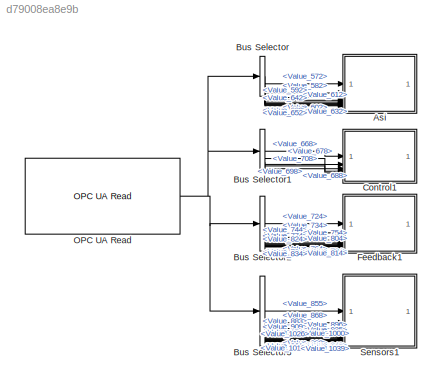
MODEL slx_d79008ea8e9b
KIND model
CONFIG AbsTol = auto
CONFIG EnableMultiTasking = off
CONFIG FixedStep = auto
CONFIG MaxStep = auto
CONFIG MinStep = auto
CONFIG RelTol = 1e-3
CONFIG SampleTimeConstraint = Unconstrained
CONFIG SolverName = VariableStepAuto
CONFIG StartTime = 0.0
CONFIG StopTime = 10.0
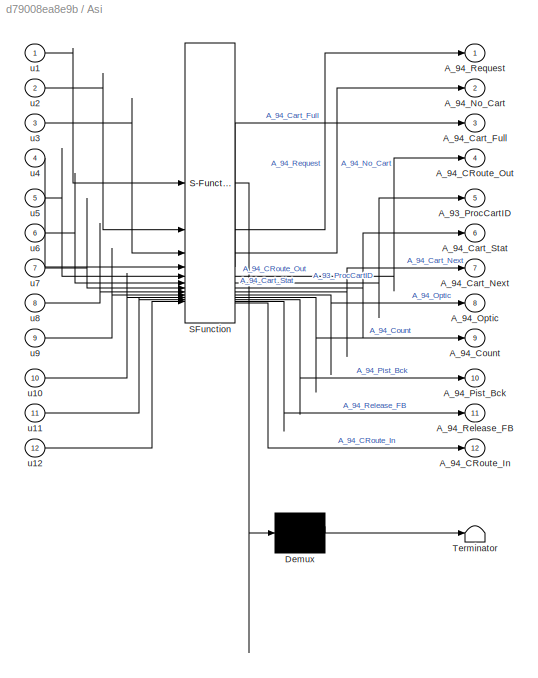
BLOCK [SubSystem] Asi
  ErrorFcn = Stateflow.Translate.translate
  PermitHierarchicalResolution = ExplicitOnly
  SFBlockType = MATLAB Function
  TreatAsAtomicUnit = on
BLOCK [Demux] Asi/ Demux 
  Outputs = 1
BLOCK [S-Function] Asi/ SFunction 
  EnableBusSupport = off
  FunctionName = sf_sfun
  PortCounts = [12 13]
  SFcnIsStateOwnerBlock = off
  SFunctionDeploymentMode = off
  Tag = Stateflow S-Function 5
BLOCK [Terminator] Asi/ Terminator 
BLOCK [Outport] Asi/A_93_ProcCartID
  Port = 5
BLOCK [Outport] Asi/A_94_CRoute_In
  Port = 12
BLOCK [Outport] Asi/A_94_CRoute_Out
  Port = 4
BLOCK [Outport] Asi/A_94_Cart_Full
  Port = 3
BLOCK [Outport] Asi/A_94_Cart_Next
  Port = 7
BLOCK [Outport] Asi/A_94_Cart_Stat
  Port = 6
BLOCK [Outport] Asi/A_94_Count
  Port = 9
BLOCK [Outport] Asi/A_94_No_Cart
  Port = 2
BLOCK [Outport] Asi/A_94_Optic
  Port = 8
BLOCK [Outport] Asi/A_94_Pist_Bck
  Port = 10
BLOCK [Outport] Asi/A_94_Release_FB
  Port = 11
BLOCK [Outport] Asi/A_94_Request
BLOCK [Inport] Asi/u1
BLOCK [Inport] Asi/u10
  Port = 10
BLOCK [Inport] Asi/u11
  Port = 11
BLOCK [Inport] Asi/u12
  Port = 12
BLOCK [Inport] Asi/u2
  Port = 2
BLOCK [Inport] Asi/u3
  Port = 3
BLOCK [Inport] Asi/u4
  Port = 4
BLOCK [Inport] Asi/u5
  Port = 5
BLOCK [Inport] Asi/u6
  Port = 6
BLOCK [Inport] Asi/u7
  Port = 7
BLOCK [Inport] Asi/u8
  Port = 8
BLOCK [Inport] Asi/u9
  Port = 9
BLOCK [BusSelector] Bus Selector
  OutputSignals = Value_572,Value_582,Value_592,Value_602,Value_612,Value_622,Value_632,Value_642,Value_652
BLOCK [BusSelector] Bus Selector1
  OutputSignals = Value_668,Value_678,Value_688,Value_698,Value_708
BLOCK [BusSelector] Bus Selector2
  OutputSignals = Value_724,Value_734,Value_744,Value_754,Value_764,Value_774,Value_784,Value_794,Value_804,Value_814,Value_824,Value_834
BLOCK [BusSelector] Bus Selector3
  OutputSignals = Value_855,Value_868,Value_883,Value_896,Value_909,Value_922,Value_935,Value_948,Value_961,Value_974,Value_987,Value_1000,Value_1013,Value_1026,Value_1039
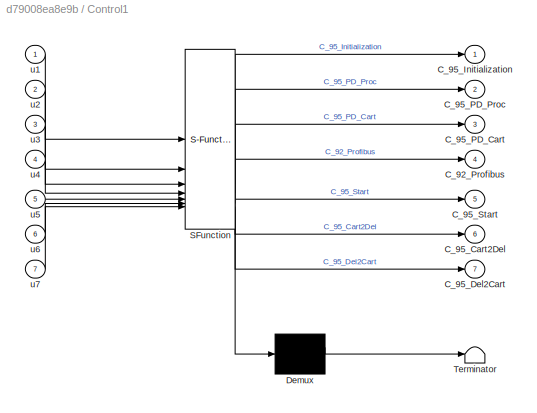
BLOCK [SubSystem] Control1
  ErrorFcn = Stateflow.Translate.translate
  PermitHierarchicalResolution = ExplicitOnly
  SFBlockType = MATLAB Function
  TreatAsAtomicUnit = on
BLOCK [Demux] Control1/ Demux 
  Outputs = 1
BLOCK [S-Function] Control1/ SFunction 
  EnableBusSupport = off
  FunctionName = sf_sfun
  PortCounts = [7 8]
  SFcnIsStateOwnerBlock = off
  SFunctionDeploymentMode = off
  Tag = Stateflow S-Function 6
BLOCK [Terminator] Control1/ Terminator 
BLOCK [Outport] Control1/C_92_Profibus
  Port = 4
BLOCK [Outport] Control1/C_95_Cart2Del
  Port = 6
BLOCK [Outport] Control1/C_95_Del2Cart
  Port = 7
BLOCK [Outport] Control1/C_95_Initialization
BLOCK [Outport] Control1/C_95_PD_Cart
  Port = 3
BLOCK [Outport] Control1/C_95_PD_Proc
  Port = 2
BLOCK [Outport] Control1/C_95_Start
  Port = 5
BLOCK [Inport] Control1/u1
BLOCK [Inport] Control1/u2
  Port = 2
BLOCK [Inport] Control1/u3
  Port = 3
BLOCK [Inport] Control1/u4
  Port = 4
BLOCK [Inport] Control1/u5
  Port = 5
BLOCK [Inport] Control1/u6
  Port = 6
BLOCK [Inport] Control1/u7
  Port = 7
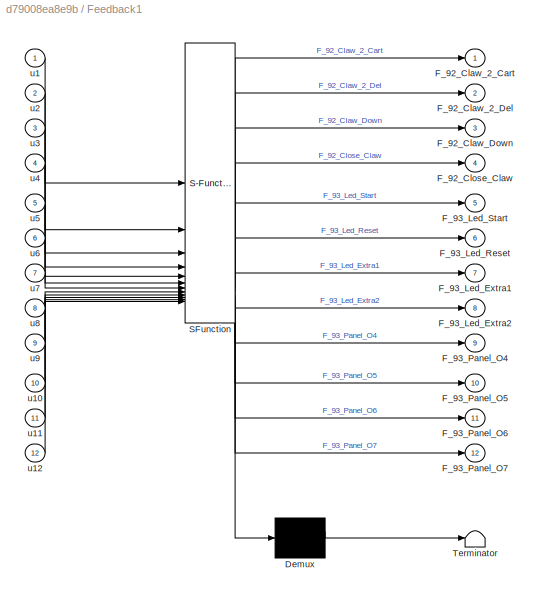
BLOCK [SubSystem] Feedback1
  ErrorFcn = Stateflow.Translate.translate
  PermitHierarchicalResolution = ExplicitOnly
  SFBlockType = MATLAB Function
  TreatAsAtomicUnit = on
BLOCK [Demux] Feedback1/ Demux 
  Outputs = 1
BLOCK [S-Function] Feedback1/ SFunction 
  EnableBusSupport = off
  FunctionName = sf_sfun
  PortCounts = [12 13]
  SFcnIsStateOwnerBlock = off
  SFunctionDeploymentMode = off
  Tag = Stateflow S-Function 7
BLOCK [Terminator] Feedback1/ Terminator 
BLOCK [Outport] Feedback1/F_92_Claw_2_Cart
BLOCK [Outport] Feedback1/F_92_Claw_2_Del
  Port = 2
BLOCK [Outport] Feedback1/F_92_Claw_Down
  Port = 3
BLOCK [Outport] Feedback1/F_92_Close_Claw
  Port = 4
BLOCK [Outport] Feedback1/F_93_Led_Extra1
  Port = 7
BLOCK [Outport] Feedback1/F_93_Led_Extra2
  Port = 8
BLOCK [Outport] Feedback1/F_93_Led_Reset
  Port = 6
BLOCK [Outport] Feedback1/F_93_Led_Start
  Port = 5
BLOCK [Outport] Feedback1/F_93_Panel_O4
  Port = 9
BLOCK [Outport] Feedback1/F_93_Panel_O5
  Port = 10
BLOCK [Outport] Feedback1/F_93_Panel_O6
  Port = 11
BLOCK [Outport] Feedback1/F_93_Panel_O7
  Port = 12
BLOCK [Inport] Feedback1/u1
BLOCK [Inport] Feedback1/u10
  Port = 10
BLOCK [Inport] Feedback1/u11
  Port = 11
BLOCK [Inport] Feedback1/u12
  Port = 12
BLOCK [Inport] Feedback1/u2
  Port = 2
BLOCK [Inport] Feedback1/u3
  Port = 3
BLOCK [Inport] Feedback1/u4
  Port = 4
BLOCK [Inport] Feedback1/u5
  Port = 5
BLOCK [Inport] Feedback1/u6
  Port = 6
BLOCK [Inport] Feedback1/u7
  Port = 7
BLOCK [Inport] Feedback1/u8
  Port = 8
BLOCK [Inport] Feedback1/u9
  Port = 9
BLOCK [Reference] OPC UA Read  REF=opcualib/OPC UA Read
  SourceBlock = opcualib/OPC UA Read
  SourceType = opcUARead
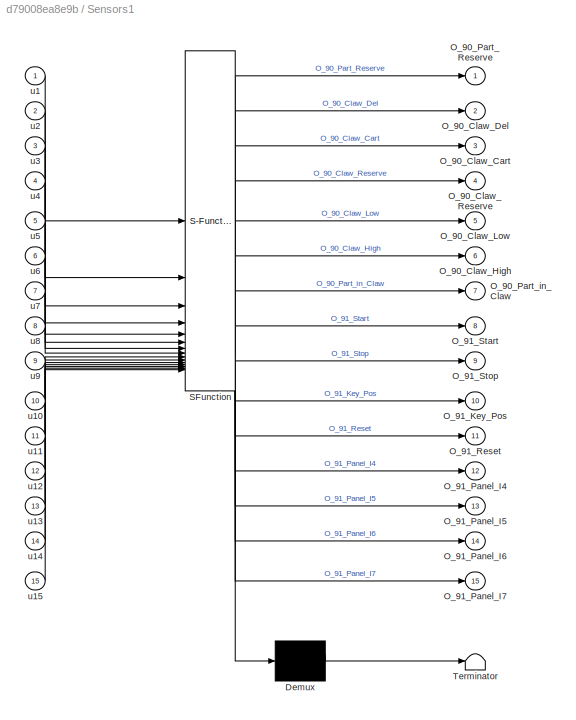
BLOCK [SubSystem] Sensors1
  ErrorFcn = Stateflow.Translate.translate
  PermitHierarchicalResolution = ExplicitOnly
  SFBlockType = MATLAB Function
  TreatAsAtomicUnit = on
BLOCK [Demux] Sensors1/ Demux 
  Outputs = 1
BLOCK [S-Function] Sensors1/ SFunction 
  EnableBusSupport = off
  FunctionName = sf_sfun
  PortCounts = [15 16]
  SFcnIsStateOwnerBlock = off
  SFunctionDeploymentMode = off
  Tag = Stateflow S-Function 8
BLOCK [Terminator] Sensors1/ Terminator 
BLOCK [Outport] Sensors1/O_90_Claw_Cart
  Port = 3
BLOCK [Outport] Sensors1/O_90_Claw_Del
  Port = 2
BLOCK [Outport] Sensors1/O_90_Claw_High
  Port = 6
BLOCK [Outport] Sensors1/O_90_Claw_Low
  Port = 5
BLOCK [Outport] Sensors1/O_90_Claw_Reserve
  Port = 4
BLOCK [Outport] Sensors1/O_90_Part_Reserve
BLOCK [Outport] Sensors1/O_90_Part_in_Claw
  Port = 7
BLOCK [Outport] Sensors1/O_91_Key_Pos
  Port = 10
BLOCK [Outport] Sensors1/O_91_Panel_I4
  Port = 12
BLOCK [Outport] Sensors1/O_91_Panel_I5
  Port = 13
BLOCK [Outport] Sensors1/O_91_Panel_I6
  Port = 14
BLOCK [Outport] Sensors1/O_91_Panel_I7
  Port = 15
BLOCK [Outport] Sensors1/O_91_Reset
  Port = 11
BLOCK [Outport] Sensors1/O_91_Start
  Port = 8
BLOCK [Outport] Sensors1/O_91_Stop
  Port = 9
BLOCK [Inport] Sensors1/u1
BLOCK [Inport] Sensors1/u10
  Port = 10
BLOCK [Inport] Sensors1/u11
  Port = 11
BLOCK [Inport] Sensors1/u12
  Port = 12
BLOCK [Inport] Sensors1/u13
  Port = 13
BLOCK [Inport] Sensors1/u14
  Port = 14
BLOCK [Inport] Sensors1/u15
  Port = 15
BLOCK [Inport] Sensors1/u2
  Port = 2
BLOCK [Inport] Sensors1/u3
  Port = 3
BLOCK [Inport] Sensors1/u4
  Port = 4
BLOCK [Inport] Sensors1/u5
  Port = 5
BLOCK [Inport] Sensors1/u6
  Port = 6
BLOCK [Inport] Sensors1/u7
  Port = 7
BLOCK [Inport] Sensors1/u8
  Port = 8
BLOCK [Inport] Sensors1/u9
  Port = 9
LINE Bus Selector1:1 -> Control1:1
LINE Bus Selector1:2 -> Control1:2
LINE Bus Selector1:3 -> Control1:3
LINE Bus Selector1:4 -> Control1:4
LINE Bus Selector1:5 -> Control1:5
LINE Bus Selector2:1 -> Feedback1:1
LINE Bus Selector2:10 -> Feedback1:10
LINE Bus Selector2:11 -> Feedback1:11
LINE Bus Selector2:12 -> Feedback1:12
LINE Bus Selector2:2 -> Feedback1:2
LINE Bus Selector2:3 -> Feedback1:3
LINE Bus Selector2:4 -> Feedback1:4
LINE Bus Selector2:5 -> Feedback1:5
LINE Bus Selector2:6 -> Feedback1:6
LINE Bus Selector2:7 -> Feedback1:7
LINE Bus Selector2:8 -> Feedback1:8
LINE Bus Selector2:9 -> Feedback1:9
LINE Bus Selector3:1 -> Sensors1:1
LINE Bus Selector3:10 -> Sensors1:10
LINE Bus Selector3:11 -> Sensors1:11
LINE Bus Selector3:12 -> Sensors1:12
LINE Bus Selector3:13 -> Sensors1:13
LINE Bus Selector3:14 -> Sensors1:14
LINE Bus Selector3:15 -> Sensors1:15
LINE Bus Selector3:2 -> Sensors1:2
LINE Bus Selector3:3 -> Sensors1:3
LINE Bus Selector3:4 -> Sensors1:4
LINE Bus Selector3:5 -> Sensors1:5
LINE Bus Selector3:6 -> Sensors1:6
LINE Bus Selector3:7 -> Sensors1:7
LINE Bus Selector3:8 -> Sensors1:8
LINE Bus Selector3:9 -> Sensors1:9
LINE Bus Selector:1 -> Asi:1
LINE Bus Selector:2 -> Asi:2
LINE Bus Selector:3 -> Asi:3
LINE Bus Selector:4 -> Asi:4
LINE Bus Selector:5 -> Asi:5
LINE Bus Selector:6 -> Asi:6
LINE Bus Selector:7 -> Asi:7
LINE Bus Selector:8 -> Asi:8
LINE Bus Selector:9 -> Asi:9
NET OPC UA Read:1 -> Bus Selector1:1, Bus Selector2:1, Bus Selector3:1, Bus Selector:1
note: NET lines group one-source signal fan-out (src -> all destinations, sorted); 1:1 wires keep LINE
CHART Sensors1 states=1 transitions=1
  STATE_LABEL 'eML_blk_kernel()'
  STATE_LABEL 'SCRIPT:\nfunction [O_90_Part_Reserve,O_90_Claw_Del,O_90_Claw_Cart,...\n    O_90_Claw_Reserve,O_90_Claw_Low,O_90_Claw_High,O_90_Part_in_Claw,...\n    O_91_Start,O_91_Stop,O_91_Key_Pos,O_91_Reset,O_91_Panel_I4,...\n    O_91_Panel_I5,O_91_Panel_I6,O_91_Panel_I7] = fcn_Sensors(u1,u2,u3,u4,...\n    u5,u6,u7,u8,u9,u10,u11,u12,u13,u14,u15)\n\nO_90_Part_Reserve = u1;\nO_90_Claw_Del = u2;\nO_90_Claw_Cart = u3;\nO_90...<+239ch>'
CHART Asi states=1 transitions=1
  STATE_LABEL 'eML_blk_kernel()'
  STATE_LABEL 'SCRIPT:\nfunction [A_94_Request,A_94_No_Cart,A_94_Cart_Full,A_94_CRoute_Out,...\nA_93_ProcCartID,A_94_Cart_Stat,A_94_Cart_Next,A_94_Optic,A_94_Count,...\nA_94_Pist_Bck,A_94_Release_FB,A_94_CRoute_In]...\n= fcn_Asi(u1,u2,u3,u4,u5,u6,u7,u8,u9,u10,u11,u12)\n\nA_94_Request = u1;\nA_94_No_Cart = u2;\nA_94_Cart_Full = u3;\nA_94_CRoute_Out = u4;\nA_93_ProcCartID = u5;\nA_94_Cart_Stat = u6;\nA_94_Cart_Next = u7;\nA_94...<+98ch>'
CHART Control1 states=1 transitions=1
  STATE_LABEL 'eML_blk_kernel()'
  STATE_LABEL 'SCRIPT:\nfunction [C_95_Initialization,C_95_PD_Proc,C_95_PD_Cart,C_92_Profibus,...\nC_95_Start,C_95_Cart2Del,C_95_Del2Cart]...\n= fcn_Control(u1,u2,u3,u4,u5,u6,u7)\n\nC_95_Initialization = u1;\nC_95_PD_Proc = u2;\nC_95_PD_Cart = u3;\nC_92_Profibus = u4;\nC_95_Start = u5;\nC_95_Cart2Del = u6;\nC_95_Del2Cart = u7;\n\n'
CHART Feedback1 states=1 transitions=1
  STATE_LABEL 'eML_blk_kernel()'
  STATE_LABEL 'SCRIPT:\nfunction [F_92_Claw_2_Cart,F_92_Claw_2_Del,F_92_Claw_Down,...\n    F_92_Close_Claw,F_93_Led_Start,F_93_Led_Reset,F_93_Led_Extra1,...\n    F_93_Led_Extra2,F_93_Panel_O4,F_93_Panel_O5,F_93_Panel_O6,...\n    F_93_Panel_O7] = fcn_Feedback(u1,u2,u3,u4,u5,u6,u7,u8,u9,u10,u11,u12)\n\nF_92_Claw_2_Cart = u1;\nF_92_Claw_2_Del = u2;\nF_92_Claw_Down = u3;\nF_92_Close_Claw = u4;\nF_93_Led_Start = u5;\nF_93_Led_R...<+138ch>'
CHART  states=0 transitions=0
CHART  states=0 transitions=0
CHART  states=0 transitions=0
CHART  states=0 transitions=0
